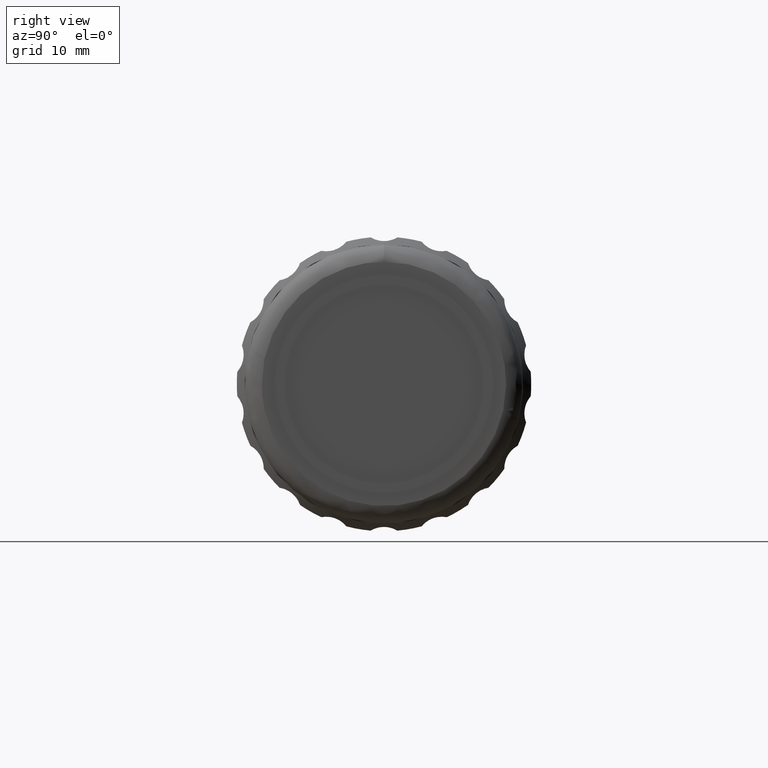
[diagram: clean part render]
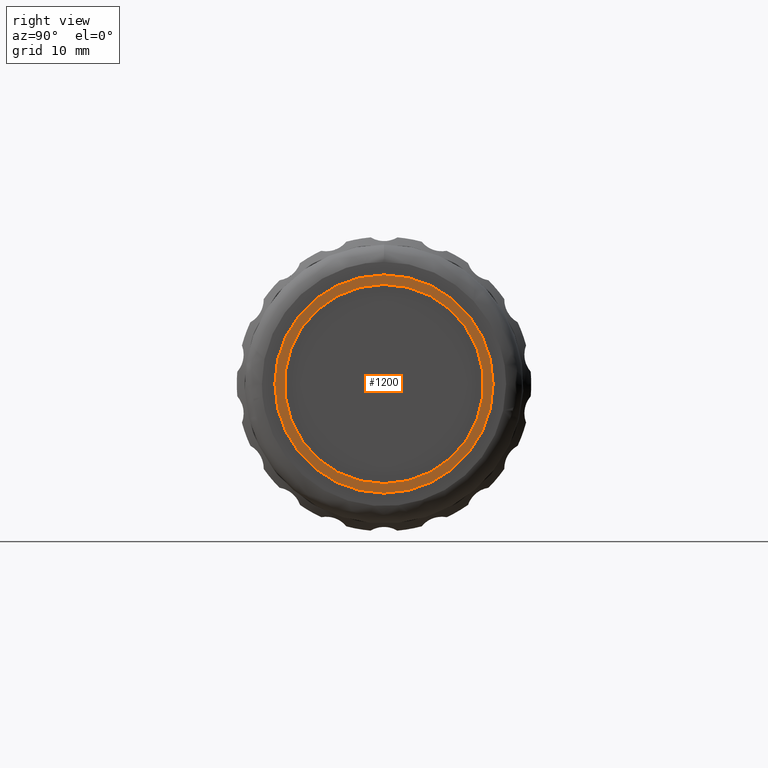
[diagram: same view with one face highlighted and labeled with its STEP entity id]
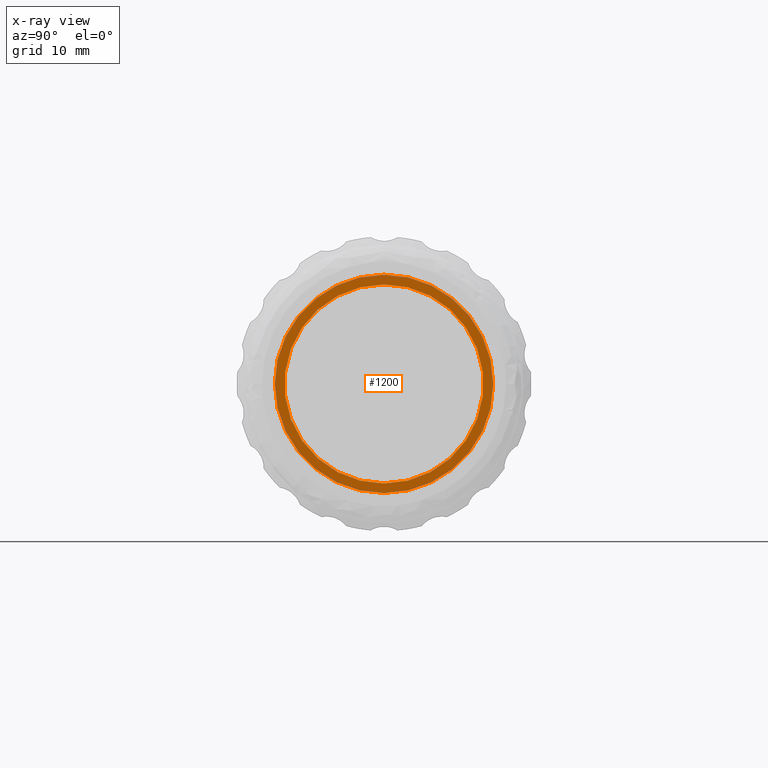
[diagram: x-ray of the same camera — body ghosted, the highlighted face saturated]
A machine part, right view. The second image highlights one B-rep face of the part: STEP entity #1200.
The next image is the same camera in x-ray: the body ghosted, the highlighted face saturated — about 0% of this face is hidden behind the body in this view.
In plain terms, the highlighted planar face has unit normal (1, 0, -0).
Its self-contained STEP definition (entity closure, byte-faithful):
#120 = AXIS2_PLACEMENT_3D ( 'NONE', #476, #160, #1783 ) ;
#131 = VERTEX_POINT ( 'NONE', #2115 ) ;
#160 = DIRECTION ( 'NONE',  ( -1.000000000000000000, -0.000000000000000000, -0.000000000000000000 ) ) ;
#428 = FACE_OUTER_BOUND ( 'NONE', #2146, .T. ) ;
#476 = CARTESIAN_POINT ( 'NONE',  ( 59.94685803487880804, 46.02096199999999726, 4.350675744370770171E-31 ) ) ;
#654 = ORIENTED_EDGE ( 'NONE', *, *, #1450, .F. ) ;
#792 = EDGE_CURVE ( 'NONE', #1441, #1441, #1082, .T. ) ;
#926 = DIRECTION ( 'NONE',  ( 1.000000000000000000, 0.000000000000000000, -0.000000000000000000 ) ) ;
#943 = AXIS2_PLACEMENT_3D ( 'NONE', #996, #951, #1620 ) ;
#951 = DIRECTION ( 'NONE',  ( -1.000000000000000000, -0.000000000000000000, -0.000000000000000000 ) ) ;
#959 = FACE_BOUND ( 'NONE', #1576, .T. ) ;
#996 = CARTESIAN_POINT ( 'NONE',  ( 59.94685803487880804, 46.02096199999999726, 0.000000000000000000 ) ) ;
#1082 = CIRCLE ( 'NONE', #943, 11.50000000000000000 ) ;
#1094 = CARTESIAN_POINT ( 'NONE',  ( 59.94685803487880804, 46.02096199999999726, 0.000000000000000000 ) ) ;
#1200 = ADVANCED_FACE ( 'NONE', ( #959, #428 ), #1951, .T. ) ;
#1417 = CARTESIAN_POINT ( 'NONE',  ( 59.94685803487880804, 46.02096199999999726, -11.50000000000000000 ) ) ;
#1441 = VERTEX_POINT ( 'NONE', #1417 ) ;
#1450 = EDGE_CURVE ( 'NONE', #131, #131, #2094, .T. ) ;
#1576 = EDGE_LOOP ( 'NONE', ( #1858 ) ) ;
#1620 = DIRECTION ( 'NONE',  ( 0.000000000000000000, 0.000000000000000000, -1.000000000000000000 ) ) ;
#1682 = AXIS2_PLACEMENT_3D ( 'NONE', #1094, #926, #2095 ) ;
#1783 = DIRECTION ( 'NONE',  ( 0.000000000000000000, 0.000000000000000000, -1.000000000000000000 ) ) ;
#1858 = ORIENTED_EDGE ( 'NONE', *, *, #792, .T. ) ;
#1951 = PLANE ( 'NONE',  #1682 ) ;
#2094 = CIRCLE ( 'NONE', #120, 12.59999999999999964 ) ;
#2095 = DIRECTION ( 'NONE',  ( -0.000000000000000000, 0.000000000000000000, -1.000000000000000000 ) ) ;
#2115 = CARTESIAN_POINT ( 'NONE',  ( 59.94685803487880804, 46.02096199999999726, -12.59999999999999964 ) ) ;
#2146 = EDGE_LOOP ( 'NONE', ( #654 ) ) ;